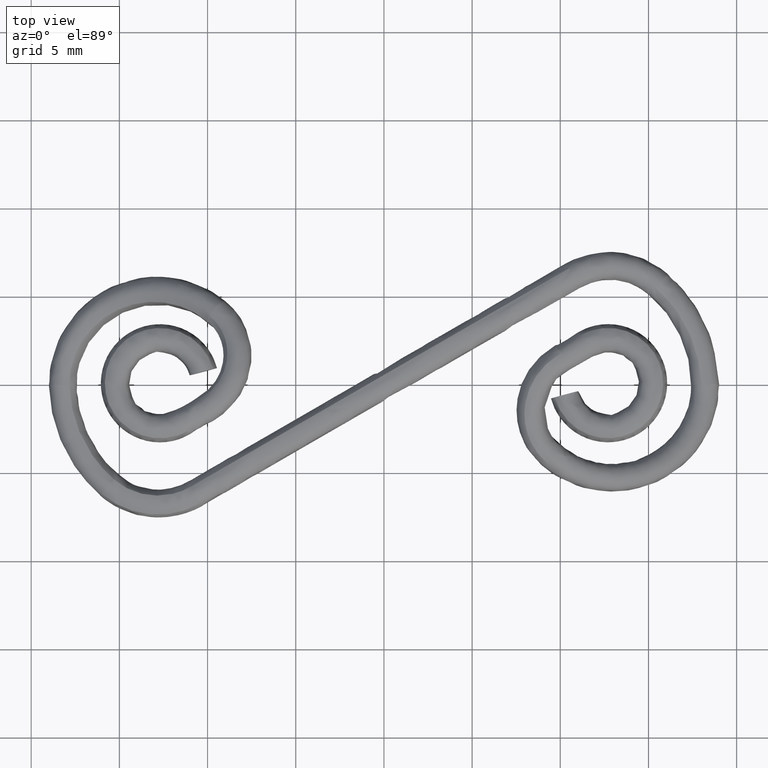
[diagram: clean part render]
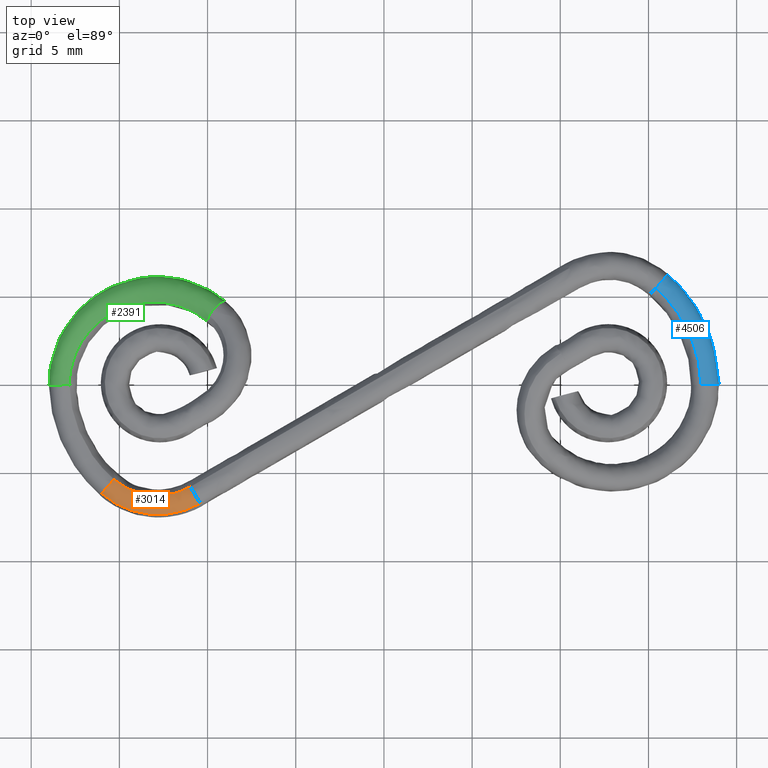
[diagram: same view with three faces highlighted in distinct colors, each labeled with its STEP entity id]
A machine part, top view with three faces highlighted in distinct colors.
Their STEP definitions:

[orange] entity #3014 — the highlighted face is a freeform B-spline surface patch.
#2580=CARTESIAN_POINT('',(-15.304851413509130,-5.374076107252367,-0.145736460972759));
#2581=VERTEX_POINT('',#2580);
#2713=CARTESIAN_POINT('',(-16.001969245800840,-6.177971851380821,-0.405940405065870));
#2714=VERTEX_POINT('',#2713);
#2730=CARTESIAN_POINT('',(-15.598247717231800,-5.687003983437430,-0.044274238070324));
#2731=VERTEX_POINT('',#2730);
#2732=CARTESIAN_POINT('',(-16.001969245800840,-6.177971851380821,-0.405940405065870));
#2733=CARTESIAN_POINT('',(-15.988104356431190,-6.158182375738361,-0.369332884511690));
#2734=CARTESIAN_POINT('',(-15.972127541891780,-6.136325535718172,-0.334971153897003));
#2735=CARTESIAN_POINT('',(-15.932719711504550,-6.084135196347403,-0.264430206837966));
#2736=CARTESIAN_POINT('',(-15.908270984355751,-6.052774553855416,-0.229077952979652));
#2737=CARTESIAN_POINT('',(-15.855642587269690,-5.987018600245817,-0.167441761376291));
#2738=CARTESIAN_POINT('',(-15.827262730472571,-5.952347993510751,-0.140715438794802));
#2739=CARTESIAN_POINT('',(-15.781424106914590,-5.897505295750029,-0.107101065000712));
#2740=CARTESIAN_POINT('',(-15.765661024555421,-5.878828701921150,-0.097051804565765));
#2741=CARTESIAN_POINT('',(-15.733695071005650,-5.841310365006822,-0.079612799623927));
#2742=CARTESIAN_POINT('',(-15.717416570199930,-5.822378648364796,-0.072171829156189));
#2743=CARTESIAN_POINT('',(-15.684266894969211,-5.784169170031620,-0.059853983605091));
#2744=CARTESIAN_POINT('',(-15.667398404673181,-5.764892976233865,-0.054965494010639));
#2745=CARTESIAN_POINT('',(-15.633079768378099,-5.726000970484497,-0.047704961525832));
#2746=CARTESIAN_POINT('',(-15.615614602803980,-5.706370532202555,-0.045349583141520));
#2747=CARTESIAN_POINT('',(-15.598247717231800,-5.687003983437430,-0.044274238070324));
#2748=B_SPLINE_CURVE_WITH_KNOTS('',3,(#2732,#2733,#2734,#2735,#2736,#2737,#2738,#2739,#2740,#2741,#2742,#2743,#2744,#2745,#2746,#2747),.UNSPECIFIED.,.F.,.U.,(4,2,2,2,2,2,2,4),(0.697468194867861,0.749999999999993,0.812499999999995,0.874999999999996,0.906249999999997,0.937499999999998,0.968749999999999,1.0),.UNSPECIFIED.);
#2749=EDGE_CURVE('',#2714,#2731,#2748,.T.);
#2751=CARTESIAN_POINT('',(-15.304851413509130,-5.374076107252367,-0.145736460972759));
#2752=CARTESIAN_POINT('',(-15.331780128793669,-5.401338562407539,-0.124223642854989));
#2753=CARTESIAN_POINT('',(-15.359729692731710,-5.430127692973351,-0.106003481369179));
#2754=CARTESIAN_POINT('',(-15.422995529664570,-5.496317295881082,-0.073318781866199));
#2755=CARTESIAN_POINT('',(-15.457895132178860,-5.533467479352483,-0.060622682646350));
#2756=CARTESIAN_POINT('',(-15.510376801752949,-5.590215262354717,-0.048933325039894));
#2757=CARTESIAN_POINT('',(-15.527932373851581,-5.609344549527609,-0.046254345614026));
#2758=CARTESIAN_POINT('',(-15.563169411565360,-5.648037850500573,-0.043377918635226));
#2759=CARTESIAN_POINT('',(-15.580864167711770,-5.667617607962620,-0.043197922061052));
#2760=CARTESIAN_POINT('',(-15.598247717231800,-5.687003983437430,-0.044274238070324));
#2761=B_SPLINE_CURVE_WITH_KNOTS('',3,(#2751,#2752,#2753,#2754,#2755,#2756,#2757,#2758,#2759,#2760),.UNSPECIFIED.,.F.,.U.,(4,2,2,2,4),(0.822236870192342,0.875000000000000,0.937500000000000,0.968750000000000,1.0),.UNSPECIFIED.);
#2762=EDGE_CURVE('',#2581,#2731,#2761,.T.);
#2891=CARTESIAN_POINT('',(-10.958716871784461,-5.791071054013768,0.252469066762723));
#2892=VERTEX_POINT('',#2891);
#2893=CARTESIAN_POINT('',(-15.304851413509130,-5.374076107252367,-0.145736460972759));
#2894=CARTESIAN_POINT('',(-15.148448587104930,-5.509860566145520,-0.128762460841444));
#2895=CARTESIAN_POINT('',(-14.999993282927100,-5.618375590819358,-0.112886948586587));
#2896=CARTESIAN_POINT('',(-14.670560500604720,-5.824748546919785,-0.078274261617240));
#2897=CARTESIAN_POINT('',(-14.497783483304540,-5.915004468649350,-0.060435419792515));
#2898=CARTESIAN_POINT('',(-13.963265450885780,-6.143828908085800,-0.006407195955681));
#2899=CARTESIAN_POINT('',(-13.585163686359710,-6.240260911519535,0.030272554332131));
#2900=CARTESIAN_POINT('',(-12.433213804979269,-6.351658093904006,0.136491980676933));
#2901=CARTESIAN_POINT('',(-11.644544501153851,-6.187033265300745,0.201362031195077));
#2902=CARTESIAN_POINT('',(-10.958716871784461,-5.791071054013766,0.252469066762722));
#2903=B_SPLINE_CURVE_WITH_KNOTS('',3,(#2893,#2894,#2895,#2896,#2897,#2898,#2899,#2900,#2901,#2902),.UNSPECIFIED.,.F.,.U.,(4,2,2,2,4),(0.001437271162297,0.125000000000000,0.250000000000000,0.500000000000000,1.0),.UNSPECIFIED.);
#2904=EDGE_CURVE('',#2581,#2892,#2903,.T.);
#2921=CARTESIAN_POINT('',(-10.407816419785959,-6.726267885595462,0.105349267746858));
#2922=VERTEX_POINT('',#2921);
#2934=CARTESIAN_POINT('',(-16.001969245800840,-6.177971851380821,-0.405940405065870));
#2935=CARTESIAN_POINT('',(-15.999122891404580,-6.180451633617524,-0.405631363048194));
#2936=CARTESIAN_POINT('',(-15.996248991904171,-6.182955383769921,-0.405319330749782));
#2937=CARTESIAN_POINT('',(-15.813538677536130,-6.342131164379927,-0.385481671957021));
#2938=CARTESIAN_POINT('',(-15.596966986406960,-6.503995023473290,-0.362347963605459));
#2939=CARTESIAN_POINT('',(-15.171423285273820,-6.770488188509802,-0.317846540333942));
#2940=CARTESIAN_POINT('',(-14.949617496778080,-6.886291933823184,-0.295085729030937));
#2941=CARTESIAN_POINT('',(-14.263651176769910,-7.179786879626187,-0.226188802019955));
#2942=CARTESIAN_POINT('',(-13.778726984084800,-7.303337354873862,-0.179456654767780));
#2943=CARTESIAN_POINT('',(-12.301297237673550,-7.446030836631639,-0.043814838213844));
#2944=CARTESIAN_POINT('',(-11.289470119860590,-7.235275655612568,0.039639749827575));
#2945=CARTESIAN_POINT('',(-10.407816419785959,-6.726267885595462,0.105349267746858));
#2946=B_SPLINE_CURVE_WITH_KNOTS('',3,(#2934,#2935,#2936,#2937,#2938,#2939,#2940,#2941,#2942,#2943,#2944,#2945),.UNSPECIFIED.,.F.,.U.,(4,2,2,2,2,4),(-0.002019263299457,0.0,0.125000000000000,0.250000000000000,0.500000000000000,1.0),.UNSPECIFIED.);
#2947=EDGE_CURVE('',#2714,#2922,#2946,.T.);
#2953=CARTESIAN_POINT('',(-15.339808383168050,-5.336657061249444,-0.152889688720000));
#2954=CARTESIAN_POINT('',(-15.466880710986700,-5.468708453311976,-0.047662795349975));
#2955=CARTESIAN_POINT('',(-15.757016660461041,-5.793297244318629,0.006481472940834));
#2956=CARTESIAN_POINT('',(-15.971163201827331,-6.069751184874854,-0.250876606648647));
#2957=CARTESIAN_POINT('',(-16.030387291926949,-6.157593238704576,-0.413850830506048));
#2958=CARTESIAN_POINT('',(-15.328352810525470,-5.346593655570735,-0.151646545314316));
#2959=CARTESIAN_POINT('',(-15.455472303071520,-5.478601868863483,-0.046424821485679));
#2960=CARTESIAN_POINT('',(-15.745723313037750,-5.803085291390478,0.007706835070921));
#2961=CARTESIAN_POINT('',(-15.959966556977029,-6.079450627309855,-0.249661844651971));
#2962=CARTESIAN_POINT('',(-16.019221027392931,-6.167264831952924,-0.412639398836733));
#2963=CARTESIAN_POINT('',(-15.158500296284579,-5.496020585117349,-0.133190256088741));
#2964=CARTESIAN_POINT('',(-15.282467264423140,-5.630842640375508,-0.027624701181205));
#2965=CARTESIAN_POINT('',(-15.565029049116150,-5.962190265393113,0.027345596776567));
#2966=CARTESIAN_POINT('',(-15.772812129113580,-6.244324181741213,-0.229318471349193));
#2967=CARTESIAN_POINT('',(-15.830037667202991,-6.333950539052721,-0.392074723893479));
#2968=CARTESIAN_POINT('',(-14.998590270548901,-5.613009657033852,-0.116102640866272));
#2969=CARTESIAN_POINT('',(-15.110842354922260,-5.756994116242687,-0.009289911753143));
#2970=CARTESIAN_POINT('',(-15.364861441544461,-6.110650991951414,0.048718868262433));
#2971=CARTESIAN_POINT('',(-15.548710078318519,-6.411470647658787,-0.205397572464611));
#2972=CARTESIAN_POINT('',(-15.598431026847511,-6.506949990559229,-0.367355100538489));
#2973=CARTESIAN_POINT('',(-14.337317452427721,-6.027759212792989,-0.046527214936524));
#2974=CARTESIAN_POINT('',(-14.418469691377879,-6.191283517622496,0.063483830955578));
#2975=CARTESIAN_POINT('',(-14.596831146662980,-6.592369041689263,0.129271449897497));
#2976=CARTESIAN_POINT('',(-14.717410093486270,-6.932691718719946,-0.118342552711294));
#2977=CARTESIAN_POINT('',(-14.747339970469641,-7.040484252105570,-0.278266826786440));
#2978=CARTESIAN_POINT('',(-13.775654908308580,-6.216764278108828,0.009401765534455));
#2979=CARTESIAN_POINT('',(-13.830327385874581,-6.389256338307254,0.121956233770669));
#2980=CARTESIAN_POINT('',(-13.944590076723561,-6.811907991976150,0.193897045431718));
#2981=CARTESIAN_POINT('',(-14.012044533770490,-7.169890747885859,-0.048622660167064));
#2982=CARTESIAN_POINT('',(-14.025487325011570,-7.283105282707013,-0.206967417598764));
#2983=CARTESIAN_POINT('',(-12.425779484031329,-6.347263047534807,0.133862050167064));
#2984=CARTESIAN_POINT('',(-12.416616515201120,-6.525976111746985,0.252186166459470));
#2985=CARTESIAN_POINT('',(-12.376622761294570,-6.963543199723790,0.338065742321962));
#2986=CARTESIAN_POINT('',(-12.316634829462730,-7.333671410305586,0.107056697806734));
#2987=CARTESIAN_POINT('',(-12.290637197902390,-7.450595782032999,-0.047727203614362));
#2988=CARTESIAN_POINT('',(-11.630090870803921,-6.178802983587711,0.199232438843596));
#2989=CARTESIAN_POINT('',(-11.583174907195231,-6.349518536810596,0.320694101863630));
#2990=CARTESIAN_POINT('',(-11.452045408693460,-6.767886352605181,0.414150322255192));
#2991=CARTESIAN_POINT('',(-11.316904392680289,-7.122343563100351,0.189393127588136));
#2992=CARTESIAN_POINT('',(-11.267687468901419,-7.234470787599324,0.036541885267476));
#2993=CARTESIAN_POINT('',(-10.940392569547820,-5.774811617928700,0.250506621425367));
#2994=CARTESIAN_POINT('',(-10.860805330462050,-5.926389580488295,0.374396449939190));
#2995=CARTESIAN_POINT('',(-10.650326929402720,-6.298279691521601,0.473750011189891));
#2996=CARTESIAN_POINT('',(-10.449026663141980,-6.613987684433568,0.253909944203799));
#2997=CARTESIAN_POINT('',(-10.379168568927550,-6.714026220470662,0.102592824743018));
#2998=B_SPLINE_SURFACE_WITH_KNOTS('',3,3,((#2953,#2958,#2963,#2968,#2973,#2978,#2983,#2988,#2993),(#2954,#2959,#2964,#2969,#2974,#2979,#2984,#2989,#2994),(#2955,#2960,#2965,#2970,#2975,#2980,#2985,#2990,#2995),(#2956,#2961,#2966,#2971,#2976,#2981,#2986,#2991,#2996),(#2957,#2962,#2967,#2972,#2977,#2982,#2987,#2992,#2997)),.UNSPECIFIED.,.F.,.F.,.U.,(4,1,4),(4,1,2,2,4),(0.0,0.634663126192951,1.219030180329374),(0.0,0.052640842869483,0.829198614885407,3.158871930933180,6.296228052166170),.UNSPECIFIED.);
#2999=ORIENTED_EDGE('',*,*,#2749,.F.);
#3000=ORIENTED_EDGE('',*,*,#2947,.T.);
#3001=CARTESIAN_POINT('',(-10.958716871784461,-5.791071054013768,0.252469066762723));
#3002=CARTESIAN_POINT('',(-10.875859387666910,-5.951065606864349,0.380159867091560));
#3003=CARTESIAN_POINT('',(-10.778869191661981,-6.124946561971095,0.425787460926926));
#3004=CARTESIAN_POINT('',(-10.565717616569760,-6.485127193359685,0.355996493661788));
#3005=CARTESIAN_POINT('',(-10.478927246527251,-6.623189121971716,0.260986938006996));
#3006=CARTESIAN_POINT('',(-10.407816419785959,-6.726267885595462,0.105349267746858));
#3007=B_SPLINE_CURVE_WITH_KNOTS('',3,(#3001,#3002,#3003,#3004,#3005,#3006),.UNSPECIFIED.,.F.,.U.,(4,2,4),(0.0,0.249973722629016,0.480823581870225),.UNSPECIFIED.);
#3008=EDGE_CURVE('',#2892,#2922,#3007,.T.);
#3009=ORIENTED_EDGE('',*,*,#3008,.F.);
#3010=ORIENTED_EDGE('',*,*,#2904,.F.);
#3011=ORIENTED_EDGE('',*,*,#2762,.T.);
#3012=EDGE_LOOP('',(#2999,#3000,#3009,#3010,#3011));
#3013=FACE_OUTER_BOUND('',#3012,.T.);
#3014=ADVANCED_FACE('',(#3013),#2998,.T.);

[blue] entity #4506 — the highlighted face is a freeform B-spline surface patch.
#3651=CARTESIAN_POINT('',(18.576434149344951,0.029800368771868,-1.867520831570873));
#3652=VERTEX_POINT('',#3651);
#3958=CARTESIAN_POINT('',(18.292820325942650,0.015229806762131,-0.361443525144128));
#3959=VERTEX_POINT('',#3958);
#3960=CARTESIAN_POINT('',(18.576434149344951,0.029800368771868,-1.867520831570873));
#3961=CARTESIAN_POINT('',(18.578272936237742,0.029853783438076,-1.866571539931166));
#3962=CARTESIAN_POINT('',(18.580108140760650,0.029907058111987,-1.865614712153130));
#3963=CARTESIAN_POINT('',(18.604984316142861,0.030628706406837,-1.852517117500952));
#3964=CARTESIAN_POINT('',(18.627459021990131,0.031274941332443,-1.839185113029048));
#3965=CARTESIAN_POINT('',(18.671269741932541,0.032522898707384,-1.810125666972656));
#3966=CARTESIAN_POINT('',(18.692596665564249,0.033124273102206,-1.794381023070606));
#3967=CARTESIAN_POINT('',(18.753484898559421,0.034822914032264,-1.744660236192725));
#3968=CARTESIAN_POINT('',(18.790501072990629,0.035830589315194,-1.707911879862982));
#3969=CARTESIAN_POINT('',(18.840764258819231,0.037158568302308,-1.647491218054852));
#3970=CARTESIAN_POINT('',(18.856710841440140,0.037572289118671,-1.626339674615142));
#3971=CARTESIAN_POINT('',(18.886303182548509,0.038323787797284,-1.582847551692972));
#3972=CARTESIAN_POINT('',(18.899949419147550,0.038661695254429,-1.560536923525759));
#3973=CARTESIAN_POINT('',(18.937476566221552,0.039563149931378,-1.491930112628392));
#3974=CARTESIAN_POINT('',(18.957989237106929,0.040015857198130,-1.443980273268321));
#3975=CARTESIAN_POINT('',(18.981388535034679,0.040452387029522,-1.368437313283501));
#3976=CARTESIAN_POINT('',(18.987891480876819,0.040555919287038,-1.342803659793390));
#3977=CARTESIAN_POINT('',(18.998223882215889,0.040679851303259,-1.291491800833349));
#3978=CARTESIAN_POINT('',(19.005961767682809,0.040722155235032,-1.239888536702386));
#3979=CARTESIAN_POINT('',(19.008682709696242,0.040606620373905,-1.187721790465513));
#3980=CARTESIAN_POINT('',(19.008887470605110,0.040411925752501,-1.135272437289859));
#3981=CARTESIAN_POINT('',(19.007712825760692,0.040273894924869,-1.108771816797527));
#3982=CARTESIAN_POINT('',(19.000431277361869,0.039747037054264,-1.030268679792465));
#3983=CARTESIAN_POINT('',(18.990670164531458,0.039247736100782,-0.979025722823986));
#3984=CARTESIAN_POINT('',(18.961289545859561,0.037951682567147,-0.878734740473080));
#3985=CARTESIAN_POINT('',(18.941359041219080,0.037143682581831,-0.829269115437211));
#3986=CARTESIAN_POINT('',(18.892559640710711,0.035275674701208,-0.736934186063389));
#3987=CARTESIAN_POINT('',(18.863679734428310,0.034213491868764,-0.693593222724841));
#3988=CARTESIAN_POINT('',(18.813888323209738,0.032435082793583,-0.632664591771715));
#3989=CARTESIAN_POINT('',(18.796115598257920,0.031808157243092,-0.612968378591480));
#3990=CARTESIAN_POINT('',(18.759122406436720,0.030517739250136,-0.575753274475519));
#3991=CARTESIAN_POINT('',(18.739840386988138,0.029851984335954,-0.558142377709483));
#3992=CARTESIAN_POINT('',(18.679696833780419,0.027794625893980,-0.508225070106278));
#3993=CARTESIAN_POINT('',(18.636568021284699,0.026343717105956,-0.478795699601514));
#3994=CARTESIAN_POINT('',(18.543846464323941,0.023272882647033,-0.428139296830000));
#3995=CARTESIAN_POINT('',(18.495818199217581,0.021704814580997,-0.407781045345756));
#3996=CARTESIAN_POINT('',(18.421372011090622,0.019307182400619,-0.384761112539980));
#3997=CARTESIAN_POINT('',(18.396148932708758,0.018500140258309,-0.378342345472478));
#3998=CARTESIAN_POINT('',(18.344894697691760,0.016870674491884,-0.367991462829650));
#3999=CARTESIAN_POINT('',(18.318738914856681,0.016044894197272,-0.364059748467387));
#4000=CARTESIAN_POINT('',(18.292820325942650,0.015229806762131,-0.361443525144128));
#4001=B_SPLINE_CURVE_WITH_KNOTS('',3,(#3960,#3961,#3962,#3963,#3964,#3965,#3966,#3967,#3968,#3969,#3970,#3971,#3972,#3973,#3974,#3975,#3976,#3977,#3978,#3979,#3980,#3981,#3982,#3983,#3984,#3985,#3986,#3987,#3988,#3989,#3990,#3991,#3992,#3993,#3994,#3995,#3996,#3997,#3998,#3999,#4000),.UNSPECIFIED.,.F.,.U.,(4,2,2,2,2,2,2,2,2,1,2,2,2,2,2,2,2,2,2,2,4),(0.185016197864913,0.187500000000001,0.218750000000001,0.250000000000001,0.312500000000001,0.343750000000001,0.375000000000002,0.437500000000000,0.468750000000000,0.499999999999999,0.531249999999998,0.562499999999998,0.624999999999996,0.687499999999994,0.749999999999993,0.781249999999993,0.812499999999994,0.874999999999994,0.937499999999995,0.968749999999998,1.0),.UNSPECIFIED.);
#4002=EDGE_CURVE('',#3652,#3959,#4001,.T.);
#4004=CARTESIAN_POINT('',(17.982400618973870,0.005913665185289,-0.389997132014686));
#4005=VERTEX_POINT('',#4004);
#4006=CARTESIAN_POINT('',(17.982400618973870,0.005913665185289,-0.389997132014686));
#4007=CARTESIAN_POINT('',(18.032726761031721,0.007373392172456,-0.375292965631856));
#4008=CARTESIAN_POINT('',(18.083806092562291,0.008879453876143,-0.365652773968175));
#4009=CARTESIAN_POINT('',(18.161592275727891,0.011211657763145,-0.358441080634225));
#4010=CARTESIAN_POINT('',(18.187762504344889,0.012002748778414,-0.357261080035584));
#4011=CARTESIAN_POINT('',(18.240481280429201,0.013610100232569,-0.357445159436206));
#4012=CARTESIAN_POINT('',(18.266930259331009,0.014423440757536,-0.358830175086301));
#4013=CARTESIAN_POINT('',(18.292820325942650,0.015229806762131,-0.361443525144128));
#4014=B_SPLINE_CURVE_WITH_KNOTS('',3,(#4006,#4007,#4008,#4009,#4010,#4011,#4012,#4013),.UNSPECIFIED.,.F.,.U.,(4,2,2,4),(0.875211705816904,0.937500000000001,0.968750000000000,1.0),.UNSPECIFIED.);
#4015=EDGE_CURVE('',#4005,#3959,#4014,.T.);
#4235=CARTESIAN_POINT('',(15.410230886767341,5.478490604524286,-0.085778384728988));
#4236=VERTEX_POINT('',#4235);
#4237=CARTESIAN_POINT('',(17.982400618973870,0.005913665185289,-0.389997132014686));
#4238=CARTESIAN_POINT('',(17.950046521596271,0.540157583264013,-0.386349265921107));
#4239=CARTESIAN_POINT('',(17.902902669863408,1.044574955727798,-0.380540425906873));
#4240=CARTESIAN_POINT('',(17.667393574556439,2.050411668068259,-0.350388257954754));
#4241=CARTESIAN_POINT('',(17.494008352537271,2.544317961400374,-0.328231006278225));
#4242=CARTESIAN_POINT('',(17.052091544927741,3.481569909314653,-0.273937800686872));
#4243=CARTESIAN_POINT('',(16.783529498394071,3.929433290714233,-0.241571112205852));
#4244=CARTESIAN_POINT('',(16.163415511141700,4.754578689562030,-0.169165639154542));
#4245=CARTESIAN_POINT('',(15.801444536367701,5.112405688047089,-0.128842887089043));
#4246=CARTESIAN_POINT('',(15.410230886767341,5.478490604524286,-0.085778384728988));
#4247=B_SPLINE_CURVE_WITH_KNOTS('',3,(#4237,#4238,#4239,#4240,#4241,#4242,#4243,#4244,#4245,#4246),.UNSPECIFIED.,.F.,.U.,(4,2,2,2,4),(0.001405179170014,0.250000000000000,0.500000000000000,0.750000000000000,0.999207262519574),.UNSPECIFIED.);
#4248=EDGE_CURVE('',#4005,#4236,#4247,.T.);
#4299=CARTESIAN_POINT('',(15.757282825251700,6.038547678429650,-1.535638772689895));
#4300=VERTEX_POINT('',#4299);
#4314=CARTESIAN_POINT('',(18.576434149344951,0.029800368771868,-1.867520831570873));
#4315=CARTESIAN_POINT('',(18.576178376872441,0.034052694373588,-1.867491708554581));
#4316=CARTESIAN_POINT('',(18.575922332548771,0.038305020548549,-1.867462884834440));
#4317=CARTESIAN_POINT('',(18.543294524366900,0.580180256571160,-1.863789869144960));
#4318=CARTESIAN_POINT('',(18.489834499984330,1.165276866419466,-1.857196526621393));
#4319=CARTESIAN_POINT('',(18.227336828539379,2.283782389938818,-1.823899736856168));
#4320=CARTESIAN_POINT('',(18.035548109395780,2.827795522833048,-1.799654068577892));
#4321=CARTESIAN_POINT('',(17.548795529766519,3.857967919287628,-1.740335062897535));
#4322=CARTESIAN_POINT('',(17.256229429443302,4.345404134885980,-1.705295710822635));
#4323=CARTESIAN_POINT('',(16.569697696750548,5.257629399762410,-1.625538721130073));
#4324=CARTESIAN_POINT('',(16.155354170009879,5.666168617073155,-1.579454785234832));
#4325=CARTESIAN_POINT('',(15.760892912903330,6.035170922460352,-1.536035919747627));
#4326=CARTESIAN_POINT('',(15.759087953044220,6.036859388274834,-1.535837245459860));
#4327=CARTESIAN_POINT('',(15.757282825251700,6.038547678429650,-1.535638772689895));
#4328=B_SPLINE_CURVE_WITH_KNOTS('',3,(#4314,#4315,#4316,#4317,#4318,#4319,#4320,#4321,#4322,#4323,#4324,#4325,#4326,#4327),.UNSPECIFIED.,.F.,.U.,(4,2,2,2,2,2,4),(-0.001977381894598,0.0,0.250000000000000,0.500000000000000,0.750000000000000,1.0,1.001149200553400),.UNSPECIFIED.);
#4329=EDGE_CURVE('',#3652,#4300,#4328,.T.);
#4335=CARTESIAN_POINT('',(18.568937672809689,-0.020454223397198,-1.873281206654440));
#4336=CARTESIAN_POINT('',(18.759647012901670,-0.009613892332926,-1.778471396988354));
#4337=CARTESIAN_POINT('',(19.056331484915962,0.005891717026777,-1.430587553715617));
#4338=CARTESIAN_POINT('',(19.018917310794670,0.000555775087151,-0.975827065544298));
#4339=CARTESIAN_POINT('',(18.827277131271789,-0.013504574696511,-0.603953340188196));
#4340=CARTESIAN_POINT('',(18.520960426657890,-0.033703759035759,-0.345084971125190));
#4341=CARTESIAN_POINT('',(18.130672137041309,-0.057199426131823,-0.345766438822751));
#4342=CARTESIAN_POINT('',(17.975389797527288,-0.066223758194887,-0.393796224116873));
#4343=CARTESIAN_POINT('',(18.567669810148718,0.000384471086360,-1.873138065989145));
#4344=CARTESIAN_POINT('',(18.758378123759201,0.011237206764640,-1.778328128198624));
#4345=CARTESIAN_POINT('',(19.055061159885270,0.026760192996257,-1.430444105674301));
#4346=CARTESIAN_POINT('',(19.017647567453970,0.021417280016068,-0.975683690048987));
#4347=CARTESIAN_POINT('',(18.826008794740481,0.007339987190679,-0.603810140230292));
#4348=CARTESIAN_POINT('',(18.519694069187778,-0.012883062536217,-0.344942018139698));
#4349=CARTESIAN_POINT('',(18.129408035614979,-0.036405969135154,-0.345623767409972));
#4350=CARTESIAN_POINT('',(17.974126555332919,-0.045440681067450,-0.393653659948906));
#4351=CARTESIAN_POINT('',(18.534872852409851,0.556980416841818,-1.869468626981273));
#4352=CARTESIAN_POINT('',(18.725637409213519,0.567153133526397,-1.774665708484091));
#4353=CARTESIAN_POINT('',(19.022399121142708,0.581723519814373,-1.426791506285846));
#4354=CARTESIAN_POINT('',(18.984953657354129,0.576762752155865,-0.972027116307954));
#4355=CARTESIAN_POINT('',(18.793237803161091,0.563614268270979,-0.600143949754461));
#4356=CARTESIAN_POINT('',(18.486814641097901,0.544699510114793,-0.341262297355875));
#4357=CARTESIAN_POINT('',(18.096404994193360,0.522669866327741,-0.341928620705299));
#4358=CARTESIAN_POINT('',(17.941076434736559,0.514204176826826,-0.389952637845072));
#4359=CARTESIAN_POINT('',(18.479426291925460,1.163729038710781,-1.862630406767570));
#4360=CARTESIAN_POINT('',(18.668700527348690,1.191953479190078,-1.767641580936167));
#4361=CARTESIAN_POINT('',(18.963377474018941,1.231811742402052,-1.419507282437552));
#4362=CARTESIAN_POINT('',(18.926776463076560,1.216707154064288,-0.964848146663588));
#4363=CARTESIAN_POINT('',(18.737103031871730,1.178903158088691,-0.593219673966486));
#4364=CARTESIAN_POINT('',(18.433553140460809,1.125259107625136,-0.334696368061562));
#4365=CARTESIAN_POINT('',(18.046418948104499,1.063589676788814,-0.335771246907577));
#4366=CARTESIAN_POINT('',(17.892337879420200,1.040018803810612,-0.383950874667966));
#4367=CARTESIAN_POINT('',(18.217250729399041,2.280851488244048,-1.829370963490271));
#4368=CARTESIAN_POINT('',(18.400649424923969,2.334296659993883,-1.733700879884142));
#4369=CARTESIAN_POINT('',(18.687097752798650,2.409834180739913,-1.384613335995913));
#4370=CARTESIAN_POINT('',(18.653803515520352,2.381380818662675,-0.930339616244819));
#4371=CARTESIAN_POINT('',(18.472160108123848,2.309942416374388,-0.559644185240462));
#4372=CARTESIAN_POINT('',(18.179918484268711,2.208492091176749,-0.302433790407503));
#4373=CARTESIAN_POINT('',(17.805688486121941,2.091776825330142,-0.305005703915738));
#4374=CARTESIAN_POINT('',(17.656524222694980,2.047152686423622,-0.353755549327652));
#4375=CARTESIAN_POINT('',(18.025691059853369,2.824213436107241,-1.805151271132745));
#4376=CARTESIAN_POINT('',(18.204912666426939,2.889529264781962,-1.709007471679712));
#4377=CARTESIAN_POINT('',(18.485475797920952,2.982039639647970,-1.359252656494855));
#4378=CARTESIAN_POINT('',(18.454449204523289,2.947727834512695,-0.905236478793170));
#4379=CARTESIAN_POINT('',(18.278432427033170,2.860877566101608,-0.535179521268490));
#4380=CARTESIAN_POINT('',(17.994157876224339,2.737294885945006,-0.278872981097975));
#4381=CARTESIAN_POINT('',(17.629067839625488,2.594844525959218,-0.282481592824065));
#4382=CARTESIAN_POINT('',(17.483393944478060,2.540337386430662,-0.331627297346401));
#4383=CARTESIAN_POINT('',(17.539515531860399,3.853155614872992,-1.745897020474204));
#4384=CARTESIAN_POINT('',(17.708216952335800,3.940893731278209,-1.648572688485023));
#4385=CARTESIAN_POINT('',(17.973786713221671,4.065658980049794,-1.297134776740440));
#4386=CARTESIAN_POINT('',(17.948066780357241,4.020742196353282,-0.843712670214406));
#4387=CARTESIAN_POINT('',(17.785821730942612,3.905235595105254,-0.475199717997735));
#4388=CARTESIAN_POINT('',(17.521261268708681,3.740247836597234,-0.221104178739309));
#4389=CARTESIAN_POINT('',(17.179025413742579,3.549375155876108,-0.227276813567634));
#4390=CARTESIAN_POINT('',(17.042117243038280,3.476228582023415,-0.277406084527293));
#4391=CARTESIAN_POINT('',(17.247256698463740,4.340069022813196,-1.710891911371130));
#4392=CARTESIAN_POINT('',(17.410356079023529,4.437336157037694,-1.612943272218458));
#4393=CARTESIAN_POINT('',(17.667956380539731,4.575799628350866,-1.260616957805238));
#4394=CARTESIAN_POINT('',(17.645096679155891,4.526353632415925,-0.807512980906831));
#4395=CARTESIAN_POINT('',(17.490219090737511,4.398646652144312,-0.439820464889672));
#4396=CARTESIAN_POINT('',(17.236186348608459,4.216043195412254,-0.186897623694591));
#4397=CARTESIAN_POINT('',(16.906134490751480,4.004582896615387,-0.194427823272487));
#4398=CARTESIAN_POINT('',(16.773896222871500,3.923513566181412,-0.245077483035979));
#4399=CARTESIAN_POINT('',(16.561605286976860,5.251119060625338,-1.631232493664766));
#4400=CARTESIAN_POINT('',(16.708661742780329,5.369800194922586,-1.531505737006417));
#4401=CARTESIAN_POINT('',(16.943065199648821,5.539404232999129,-1.176606640343724));
#4402=CARTESIAN_POINT('',(16.927512620849591,5.480624160177747,-0.724308390724959));
#4403=CARTESIAN_POINT('',(16.792861404416840,5.326333059811656,-0.358853561531100));
#4404=CARTESIAN_POINT('',(16.568209832182990,5.104876098679728,-0.109183570966207));
#4405=CARTESIAN_POINT('',(16.272689037926138,4.847495260459876,-0.120539322637366));
#4406=CARTESIAN_POINT('',(16.153769808406580,4.748673601644359,-0.172664941781780));
#4407=CARTESIAN_POINT('',(16.134364481878190,5.672378704820369,-1.583713339588733));
#4408=CARTESIAN_POINT('',(16.268007282704360,5.804208482535376,-1.482508757257377));
#4409=CARTESIAN_POINT('',(16.482792118417532,5.993078425459775,-1.125447617286977));
#4410=CARTESIAN_POINT('',(16.472821147349460,5.928909427405550,-0.673762902404326));
#4411=CARTESIAN_POINT('',(16.354560387506829,5.758633019882296,-0.310112472216680));
#4412=CARTESIAN_POINT('',(16.154016145434952,5.513616590992216,-0.063097240205001));
#4413=CARTESIAN_POINT('',(15.887151483672900,5.228179435116950,-0.077609554985761));
#4414=CARTESIAN_POINT('',(15.779335907974010,5.118478573516511,-0.130958412697170));
#4415=CARTESIAN_POINT('',(15.729488854568549,6.050424755948443,-1.539164071719139));
#4416=CARTESIAN_POINT('',(15.863562389854510,6.181832168122749,-1.438006945115109));
#4417=CARTESIAN_POINT('',(16.078977216096352,6.370083232641989,-1.081015232997554));
#4418=CARTESIAN_POINT('',(16.068827020918761,6.306087311386309,-0.629310817857328));
#4419=CARTESIAN_POINT('',(15.950039946964280,6.136324361893905,-0.265602446529090));
#4420=CARTESIAN_POINT('',(15.748721588074870,5.892064694336043,-0.018501966577491));
#4421=CARTESIAN_POINT('',(15.480936735179650,5.607528762242992,-0.032912918860078));
#4422=CARTESIAN_POINT('',(15.372764603591570,5.498177364640467,-0.086222496200578));
#4423=CARTESIAN_POINT('',(15.716557862433859,6.062532113050170,-1.537740491051850));
#4424=CARTESIAN_POINT('',(15.850624644021741,6.193946147528572,-1.436582620366462));
#4425=CARTESIAN_POINT('',(16.066029592336811,6.382206915478630,-1.079589819656701));
#4426=CARTESIAN_POINT('',(16.055882207315449,6.318208280502976,-0.627885713408201));
#4427=CARTESIAN_POINT('',(15.937103385712380,6.148437280425664,-0.264178250569012));
#4428=CARTESIAN_POINT('',(15.735797164593700,5.904165747514497,-0.017079107262801));
#4429=CARTESIAN_POINT('',(15.468026739834510,5.619615685045422,-0.031491648857905));
#4430=CARTESIAN_POINT('',(15.359860198862901,5.510258808165963,-0.084801842094503));
#4431=B_SPLINE_SURFACE_WITH_KNOTS('',3,3,((#4335,#4343,#4351,#4359,#4367,#4375,#4383,#4391,#4399,#4407,#4415,#4423),(#4336,#4344,#4352,#4360,#4368,#4376,#4384,#4392,#4400,#4408,#4416,#4424),(#4337,#4345,#4353,#4361,#4369,#4377,#4385,#4393,#4401,#4409,#4417,#4425),(#4338,#4346,#4354,#4362,#4370,#4378,#4386,#4394,#4402,#4410,#4418,#4426),(#4339,#4347,#4355,#4363,#4371,#4379,#4387,#4395,#4403,#4411,#4419,#4427),(#4340,#4348,#4356,#4364,#4372,#4380,#4388,#4396,#4404,#4412,#4420,#4428),(#4341,#4349,#4357,#4365,#4373,#4381,#4389,#4397,#4405,#4413,#4421,#4429),(#4342,#4350,#4358,#4366,#4374,#4382,#4390,#4398,#4406,#4414,#4422,#4430)),.UNSPECIFIED.,.F.,.F.,.U.,(4,1,2,1,4),(4,1,2,2,2,1,4),(0.0,0.640724902399797,1.269617442014449,1.898509981629101,2.388297646680776),(0.0,0.069740843370708,1.871833522632728,3.673926201894748,5.476018881156768,7.278111560418790,7.337409435322325),.UNSPECIFIED.);
#4432=ORIENTED_EDGE('',*,*,#4015,.T.);
#4433=ORIENTED_EDGE('',*,*,#4002,.F.);
#4434=ORIENTED_EDGE('',*,*,#4329,.T.);
#4435=CARTESIAN_POINT('',(16.019131944902501,6.279055442660342,-1.126548424494869));
#4436=VERTEX_POINT('',#4435);
#4437=CARTESIAN_POINT('',(15.757282825251700,6.038547678429650,-1.535638772689895));
#4438=CARTESIAN_POINT('',(15.762255708099721,6.043575286749009,-1.531669230602861));
#4439=CARTESIAN_POINT('',(15.767193814246159,6.048550805681195,-1.527587614219830));
#4440=CARTESIAN_POINT('',(15.787833971400770,6.069275438824598,-1.509933516919893));
#4441=CARTESIAN_POINT('',(15.803213771306410,6.084541878148784,-1.495322523569198));
#4442=CARTESIAN_POINT('',(15.833259110240020,6.114004921392159,-1.463798702669285));
#4443=CARTESIAN_POINT('',(15.847914391538900,6.128188803982211,-1.446874647159373));
#4444=CARTESIAN_POINT('',(15.889863508433960,6.168230028956335,-1.393817875543664));
#4445=CARTESIAN_POINT('',(15.915510166447520,6.191948304544505,-1.355086897889377));
#4446=CARTESIAN_POINT('',(15.950550391542800,6.223125251413916,-1.292022251415092));
#4447=CARTESIAN_POINT('',(15.961708226753739,6.232822756383235,-1.270039666291672));
#4448=CARTESIAN_POINT('',(15.982488139559999,6.250391839276494,-1.225043278788936));
#4449=CARTESIAN_POINT('',(15.992114573545919,6.258270722289835,-1.202049958255584));
#4450=CARTESIAN_POINT('',(16.007435081151360,6.270329488914208,-1.161487168130208));
#4451=CARTESIAN_POINT('',(16.013488372321142,6.274935461175034,-1.144150642826835));
#4452=CARTESIAN_POINT('',(16.019131944902501,6.279055442660342,-1.126548424494869));
#4453=B_SPLINE_CURVE_WITH_KNOTS('',3,(#4437,#4438,#4439,#4440,#4441,#4442,#4443,#4444,#4445,#4446,#4447,#4448,#4449,#4450,#4451,#4452),.UNSPECIFIED.,.F.,.U.,(4,2,2,2,2,2,2,4),(0.177763196113843,0.187500000000013,0.218750000000014,0.250000000000014,0.312500000000014,0.343750000000014,0.375000000000014,0.397726754530586),.UNSPECIFIED.);
#4454=EDGE_CURVE('',#4300,#4436,#4453,.T.);
#4455=ORIENTED_EDGE('',*,*,#4454,.T.);
#4456=CARTESIAN_POINT('',(15.607804960034001,5.692505060938380,-0.044986752160377));
#4457=VERTEX_POINT('',#4456);
#4458=CARTESIAN_POINT('',(16.019131944902501,6.279055442660342,-1.126548424494869));
#4459=CARTESIAN_POINT('',(16.029008730019559,6.286265830578709,-1.095743528130873));
#4460=CARTESIAN_POINT('',(16.037630661842869,6.291987766044572,-1.064124888840981));
#4461=CARTESIAN_POINT('',(16.050667831813730,6.299407250140739,-1.006133569406256));
#4462=CARTESIAN_POINT('',(16.055546474216630,6.301677453687543,-0.980251243993736));
#4463=CARTESIAN_POINT('',(16.063519060407419,6.304253898488869,-0.928592714572309));
#4464=CARTESIAN_POINT('',(16.069763463677202,6.304899363411297,-0.876795682416952));
#4465=CARTESIAN_POINT('',(16.072659056923559,6.301803045826357,-0.824730264698823));
#4466=CARTESIAN_POINT('',(16.073871170006630,6.296825696776629,-0.772529926886049));
#4467=CARTESIAN_POINT('',(16.073625300049819,6.293369567528315,-0.746232984653639));
#4468=CARTESIAN_POINT('',(16.070341596442631,6.280331344878885,-0.668583834306698));
#4469=CARTESIAN_POINT('',(16.064830742040581,6.268125827945035,-0.618188117686095));
#4470=CARTESIAN_POINT('',(16.047102856492870,6.236621693702781,-0.520163336077409));
#4471=CARTESIAN_POINT('',(16.034675157615059,6.217042127244151,-0.472141082625443));
#4472=CARTESIAN_POINT('',(16.003661449671071,6.171921761623944,-0.383199787312943));
#4473=CARTESIAN_POINT('',(15.985104867790110,6.146353189996550,-0.341782125341139));
#4474=CARTESIAN_POINT('',(15.952850596756960,6.103640833963946,-0.284079754631304));
#4475=CARTESIAN_POINT('',(15.941301057128110,6.088601694371874,-0.265525750868740));
#4476=CARTESIAN_POINT('',(15.917187951516301,6.057672503777956,-0.230666617582002));
#4477=CARTESIAN_POINT('',(15.904583013794030,6.041725695813486,-0.214271195663192));
#4478=CARTESIAN_POINT('',(15.865159627399640,5.992470799653841,-0.168118380390041));
#4479=CARTESIAN_POINT('',(15.836753285125100,5.957766220492867,-0.141353761459211));
#4480=CARTESIAN_POINT('',(15.775393238923320,5.884359217438863,-0.096406672702975));
#4481=CARTESIAN_POINT('',(15.743497803806010,5.846925669858287,-0.079022824683903));
#4482=CARTESIAN_POINT('',(15.693834176926030,5.789681858393078,-0.060570551695026));
#4483=CARTESIAN_POINT('',(15.676977793416340,5.770419284421328,-0.055683794540757));
#4484=CARTESIAN_POINT('',(15.642665223519700,5.731533852169723,-0.048422056896230));
#4485=CARTESIAN_POINT('',(15.625189129755389,5.711890878619198,-0.046063122211531));
#4486=CARTESIAN_POINT('',(15.607804960034001,5.692505060938380,-0.044986752160377));
#4487=B_SPLINE_CURVE_WITH_KNOTS('',3,(#4458,#4459,#4460,#4461,#4462,#4463,#4464,#4465,#4466,#4467,#4468,#4469,#4470,#4471,#4472,#4473,#4474,#4475,#4476,#4477,#4478,#4479,#4480,#4481,#4482,#4483,#4484,#4485,#4486),.UNSPECIFIED.,.F.,.U.,(4,2,2,1,2,2,2,2,2,2,2,2,2,2,4),(0.397726754530586,0.437500000000013,0.468750000000012,0.500000000000012,0.531250000000011,0.562500000000011,0.625000000000009,0.687500000000008,0.750000000000007,0.781250000000007,0.812500000000007,0.875000000000004,0.937500000000002,0.968750000000001,1.0),.UNSPECIFIED.);
#4488=EDGE_CURVE('',#4436,#4457,#4487,.T.);
#4489=ORIENTED_EDGE('',*,*,#4488,.T.);
#4490=CARTESIAN_POINT('',(15.410230886767341,5.478490604524286,-0.085778384728988));
#4491=CARTESIAN_POINT('',(15.440547148600221,5.510337009038181,-0.071196292094154));
#4492=CARTESIAN_POINT('',(15.471183138389240,5.543005800077038,-0.060531267521887));
#4493=CARTESIAN_POINT('',(15.519652899933741,5.595410641448321,-0.049694217021701));
#4494=CARTESIAN_POINT('',(15.537279380469840,5.614615375619827,-0.046989138036514));
#4495=CARTESIAN_POINT('',(15.563873013745130,5.643816612408000,-0.044811025751037));
#4496=CARTESIAN_POINT('',(15.572750155102060,5.653601914371763,-0.044401008222086));
#4497=CARTESIAN_POINT('',(15.590453266070410,5.673192102664353,-0.044222093021115));
#4498=CARTESIAN_POINT('',(15.599121814110029,5.682821500957284,-0.044449171299018));
#4499=CARTESIAN_POINT('',(15.607804960034001,5.692505060938380,-0.044986752160377));
#4500=B_SPLINE_CURVE_WITH_KNOTS('',3,(#4490,#4491,#4492,#4493,#4494,#4495,#4496,#4497,#4498,#4499),.UNSPECIFIED.,.F.,.U.,(4,2,2,2,4),(0.882331041148833,0.937500000000001,0.968750000000000,0.984375000000000,1.0),.UNSPECIFIED.);
#4501=EDGE_CURVE('',#4236,#4457,#4500,.T.);
#4502=ORIENTED_EDGE('',*,*,#4501,.F.);
#4503=ORIENTED_EDGE('',*,*,#4248,.F.);
#4504=EDGE_LOOP('',(#4432,#4433,#4434,#4455,#4489,#4502,#4503));
#4505=FACE_OUTER_BOUND('',#4504,.T.);
#4506=ADVANCED_FACE('',(#4505),#4431,.F.);

[green] entity #2391 — the highlighted face is a freeform B-spline surface patch.
#1568=CARTESIAN_POINT('',(-9.059387980335979,4.674913595426780,3.222986224316580));
#1569=VERTEX_POINT('',#1568);
#1570=CARTESIAN_POINT('',(-9.906934944882353,3.846819592701188,3.602153643109173));
#1571=VERTEX_POINT('',#1570);
#1572=CARTESIAN_POINT('',(-9.059387980335979,4.674913595426780,3.222986224316580));
#1573=CARTESIAN_POINT('',(-9.065183282482620,4.673888185966382,3.234617465727733));
#1574=CARTESIAN_POINT('',(-9.071142972305054,4.672604158926495,3.246131191696617));
#1575=CARTESIAN_POINT('',(-9.083395564711314,4.669511888676754,3.268920440588862));
#1576=CARTESIAN_POINT('',(-9.089769467455598,4.667679845597061,3.280340638156275));
#1577=CARTESIAN_POINT('',(-9.109302196982625,4.661411882999782,3.314063721358772));
#1578=CARTESIAN_POINT('',(-9.122862293932153,4.656219846971094,3.335836356151705));
#1579=CARTESIAN_POINT('',(-9.165075924332811,4.637757109762222,3.399133444190325));
#1580=CARTESIAN_POINT('',(-9.195244471705141,4.621634254744397,3.438661224839906));
#1581=CARTESIAN_POINT('',(-9.259661361087991,4.581707982276888,3.512339937845111));
#1582=CARTESIAN_POINT('',(-9.292894922052083,4.558533834774229,3.545330771560706));
#1583=CARTESIAN_POINT('',(-9.344222158582348,4.519115449117160,3.589211962745945));
#1584=CARTESIAN_POINT('',(-9.361580428698153,4.505191989825997,3.602896793003176));
#1585=CARTESIAN_POINT('',(-9.396815939361119,4.475712299307153,3.628304136826937));
#1586=CARTESIAN_POINT('',(-9.414769963161422,4.460081109862506,3.640061123322267));
#1587=CARTESIAN_POINT('',(-9.468250651528141,4.411680360600865,3.671496923408530));
#1588=CARTESIAN_POINT('',(-9.503719496494224,4.377131204908872,3.687570593899735));
#1589=CARTESIAN_POINT('',(-9.574305147895171,4.303689728905847,3.710423520353042));
#1590=CARTESIAN_POINT('',(-9.609696191677100,4.264452405296336,3.717175194189825));
#1591=CARTESIAN_POINT('',(-9.677303243461177,4.184806912187229,3.720928220962671));
#1592=CARTESIAN_POINT('',(-9.709836493855963,4.144104395197359,3.718101938969836));
#1593=CARTESIAN_POINT('',(-9.756677999981461,4.081694290943682,3.706612165252845));
#1594=CARTESIAN_POINT('',(-9.771967152979221,4.060646060759572,3.701541213032354));
#1595=CARTESIAN_POINT('',(-9.801200772012821,4.019007490280943,3.689129098518137));
#1596=CARTESIAN_POINT('',(-9.815233710461694,3.998301941417699,3.681771438313016));
#1597=CARTESIAN_POINT('',(-9.855566889929124,3.936529241610026,3.656215976878212));
#1598=CARTESIAN_POINT('',(-9.880178141173618,3.895629694477079,3.634372210036795));
#1599=CARTESIAN_POINT('',(-9.903766939408527,3.852653795353676,3.606075750689835));
#1600=CARTESIAN_POINT('',(-9.905359403993641,3.849731766748398,3.604125016984886));
#1601=CARTESIAN_POINT('',(-9.906934944882353,3.846819592701188,3.602153643109173));
#1602=B_SPLINE_CURVE_WITH_KNOTS('',3,(#1572,#1573,#1574,#1575,#1576,#1577,#1578,#1579,#1580,#1581,#1582,#1583,#1584,#1585,#1586,#1587,#1588,#1589,#1590,#1591,#1592,#1593,#1594,#1595,#1596,#1597,#1598,#1599,#1600,#1601),.UNSPECIFIED.,.F.,.U.,(4,2,2,2,2,2,2,2,2,2,2,2,2,2,4),(0.0,0.015625000000000,0.031250000000001,0.062500000000001,0.125000000000001,0.187500000000001,0.218750000000001,0.250000000000001,0.312500000000001,0.375000000000000,0.437499999999999,0.468749999999998,0.499999999999998,0.562499999999997,0.567075899729916),.UNSPECIFIED.);
#1603=EDGE_CURVE('',#1569,#1571,#1602,.T.);
#1634=CARTESIAN_POINT('',(-10.017231713933541,3.528219933815038,3.240482905691120));
#1635=VERTEX_POINT('',#1634);
#1681=CARTESIAN_POINT('',(-9.105669165661146,4.120279536177234,2.252424275140079));
#1682=VERTEX_POINT('',#1681);
#1712=CARTESIAN_POINT('',(-9.059387980335979,4.674913595426780,3.222986224316580));
#1713=CARTESIAN_POINT('',(-9.047786185791713,4.676952873603677,3.199733979770065));
#1714=CARTESIAN_POINT('',(-9.036831945129769,4.677963609669485,3.175998164333513));
#1715=CARTESIAN_POINT('',(-9.016171609539558,4.677906778994093,3.127429031802963));
#1716=CARTESIAN_POINT('',(-9.006546698256035,4.676827883562882,3.102761668902219));
#1717=CARTESIAN_POINT('',(-8.980151860281106,4.670588415638764,3.028749414436772));
#1718=CARTESIAN_POINT('',(-8.965765475346473,4.662495193120305,2.979304537363669));
#1719=CARTESIAN_POINT('',(-8.943230521753520,4.638677702303965,2.880211523659071));
#1720=CARTESIAN_POINT('',(-8.935073328548429,4.622693653441735,2.830038255221175));
#1721=CARTESIAN_POINT('',(-8.926013038102859,4.583981341065990,2.733566383309887));
#1722=CARTESIAN_POINT('',(-8.924990307109590,4.561233615092251,2.686946651385983));
#1723=CARTESIAN_POINT('',(-8.930189083236057,4.508731881117438,2.597045953836233));
#1724=CARTESIAN_POINT('',(-8.936491736226058,4.478708690248522,2.553432766664192));
#1725=CARTESIAN_POINT('',(-8.955593378243352,4.414463280318207,2.473240216419742));
#1726=CARTESIAN_POINT('',(-8.968363705812418,4.380027849211582,2.436179319257520));
#1727=CARTESIAN_POINT('',(-8.992394298883349,4.324874598709528,2.385182566111028));
#1728=CARTESIAN_POINT('',(-9.001244259042798,4.305875873800090,2.368953010441687));
#1729=CARTESIAN_POINT('',(-9.020231293597680,4.267493792686726,2.338755227817500));
#1730=CARTESIAN_POINT('',(-9.040585685507729,4.228532292076908,2.310627848151530));
#1731=CARTESIAN_POINT('',(-9.063681978579295,4.188408606072104,2.286652621836221));
#1732=CARTESIAN_POINT('',(-9.085413238686305,4.152314354688435,2.267317635626105));
#1733=CARTESIAN_POINT('',(-9.095352356643712,4.136342260430502,2.259516565846699));
#1734=CARTESIAN_POINT('',(-9.105669165661146,4.120279536177234,2.252424275140079));
#1735=B_SPLINE_CURVE_WITH_KNOTS('',3,(#1712,#1713,#1714,#1715,#1716,#1717,#1718,#1719,#1720,#1721,#1722,#1723,#1724,#1725,#1726,#1727,#1728,#1729,#1730,#1731,#1732,#1733,#1734),.UNSPECIFIED.,.F.,.U.,(4,2,2,2,2,2,2,2,2,1,2,4),(0.0,0.031250000000001,0.062500000000002,0.125000000000003,0.187500000000004,0.250000000000005,0.312500000000007,0.375000000000008,0.406250000000008,0.437500000000009,0.468750000000010,0.492889295149358),.UNSPECIFIED.);
#1736=EDGE_CURVE('',#1569,#1682,#1735,.T.);
#1806=CARTESIAN_POINT('',(-9.906934944882353,3.846819592701188,3.602153643109173));
#1807=CARTESIAN_POINT('',(-9.926882299008568,3.809953980968513,3.577203875419784));
#1808=CARTESIAN_POINT('',(-9.944156483990117,3.774647841441799,3.549006627952385));
#1809=CARTESIAN_POINT('',(-9.966866838573621,3.722559496118554,3.500879441212866));
#1810=CARTESIAN_POINT('',(-9.974084032314265,3.704738266473262,3.483113178485701));
#1811=CARTESIAN_POINT('',(-9.986997209921135,3.669983263230589,3.445732606990381));
#1812=CARTESIAN_POINT('',(-9.992665811581512,3.653103258354661,3.426158712274746));
#1813=CARTESIAN_POINT('',(-10.007014049386440,3.604870917975603,3.365879713975574));
#1814=CARTESIAN_POINT('',(-10.013206929526421,3.575537658185815,3.323261504884092));
#1815=CARTESIAN_POINT('',(-10.016592164096931,3.541960267757074,3.265765273275421));
#1816=CARTESIAN_POINT('',(-10.017048755780239,3.534964011212652,3.253200095811043));
#1817=CARTESIAN_POINT('',(-10.017231713933541,3.528219933815038,3.240482905691120));
#1818=B_SPLINE_CURVE_WITH_KNOTS('',3,(#1806,#1807,#1808,#1809,#1810,#1811,#1812,#1813,#1814,#1815,#1816,#1817),.UNSPECIFIED.,.F.,.U.,(4,2,2,2,2,4),(0.567075899729916,0.624999999999996,0.656249999999996,0.687499999999996,0.749999999999997,0.767061458564381),.UNSPECIFIED.);
#1819=EDGE_CURVE('',#1571,#1635,#1818,.T.);
#2004=CARTESIAN_POINT('',(-17.932954222185039,-0.004765133382997,-1.910022682030774));
#2005=VERTEX_POINT('',#2004);
#2006=CARTESIAN_POINT('',(-17.833085694830402,0.003582177200883,-0.445030937167454));
#2007=VERTEX_POINT('',#2006);
#2047=CARTESIAN_POINT('',(-9.105669165661146,4.120279536177234,2.252424275140079));
#2048=CARTESIAN_POINT('',(-9.293847473414404,4.278482695171467,2.163690090428476));
#2049=CARTESIAN_POINT('',(-9.495286821597702,4.425543435602357,2.068702750562774));
#2050=CARTESIAN_POINT('',(-9.920196108897615,4.692587706675319,1.868339691524844));
#2051=CARTESIAN_POINT('',(-10.145470390406579,4.812726954373710,1.762113146951022));
#2052=CARTESIAN_POINT('',(-10.843215554568310,5.123332760895022,1.433096185572084));
#2053=CARTESIAN_POINT('',(-11.337472508775420,5.263611909056980,1.200032687918619));
#2054=CARTESIAN_POINT('',(-12.850371970820071,5.468114050718316,0.486635230102883));
#2055=CARTESIAN_POINT('',(-13.896818977927429,5.309870678510384,-0.006809782037347));
#2056=CARTESIAN_POINT('',(-15.744101229656181,4.452202027001945,-0.877883315077742));
#2057=CARTESIAN_POINT('',(-16.541866255339279,3.754065275621467,-1.254064094890051));
#2058=CARTESIAN_POINT('',(-17.364229059484671,2.462827499836412,-1.641843867292024));
#2059=CARTESIAN_POINT('',(-17.576703270556731,1.993300644590887,-1.742034701912776));
#2060=CARTESIAN_POINT('',(-17.790421428120009,1.257423226963295,-1.842812145611362));
#2061=CARTESIAN_POINT('',(-17.844203474295909,1.006975551241712,-1.868172737343383));
#2062=CARTESIAN_POINT('',(-17.915446137500101,0.502793349224358,-1.901766797566680));
#2063=CARTESIAN_POINT('',(-17.933163034002838,0.247047250862800,-1.910121113167799));
#2064=CARTESIAN_POINT('',(-17.932954222185039,-0.004765133382997,-1.910022682030774));
#2065=B_SPLINE_CURVE_WITH_KNOTS('',3,(#2047,#2048,#2049,#2050,#2051,#2052,#2053,#2054,#2055,#2056,#2057,#2058,#2059,#2060,#2061,#2062,#2063,#2064),.UNSPECIFIED.,.F.,.U.,(4,2,2,2,2,2,2,2,4),(0.001862412457592,0.062500000000000,0.125000000000000,0.250000000000000,0.500000000000000,0.750000000000000,0.875000000000000,0.937500000000000,0.999540144974742),.UNSPECIFIED.);
#2066=EDGE_CURVE('',#1682,#2005,#2065,.T.);
#2070=CARTESIAN_POINT('',(-10.017231713933541,3.528219933815038,3.240482905691120));
#2071=CARTESIAN_POINT('',(-10.021216426477020,3.531599160221936,3.238603941795331));
#2072=CARTESIAN_POINT('',(-10.025156285896440,3.534940305218360,3.236746128082841));
#2073=CARTESIAN_POINT('',(-10.210235794643991,3.691892073777775,3.149473153935875));
#2074=CARTESIAN_POINT('',(-10.380928861501619,3.815762954343976,3.068984004893181));
#2075=CARTESIAN_POINT('',(-10.761399822594090,4.054879146602216,2.889575518292942));
#2076=CARTESIAN_POINT('',(-10.960577581143109,4.161140467696742,2.795654602084416));
#2077=CARTESIAN_POINT('',(-11.578717702633501,4.436309876996736,2.504174827755612));
#2078=CARTESIAN_POINT('',(-12.018204238751620,4.561213252608146,2.296937927614071));
#2079=CARTESIAN_POINT('',(-13.365333600284490,4.743308318902885,1.661708170463193));
#2080=CARTESIAN_POINT('',(-14.299071267110911,4.601410656452392,1.221410438109776));
#2081=CARTESIAN_POINT('',(-15.934898209379300,3.841918267907880,0.450047145067814));
#2082=CARTESIAN_POINT('',(-16.633340129121340,3.227102402159374,0.120701470803146));
#2083=CARTESIAN_POINT('',(-17.345621903950409,2.108709491369155,-0.215170366090924));
#2084=CARTESIAN_POINT('',(-17.528185733237191,1.704478435116342,-0.301257168891688));
#2085=CARTESIAN_POINT('',(-17.711328246547492,1.073880152869170,-0.387616878665931));
#2086=CARTESIAN_POINT('',(-17.757296411184381,0.859702110274309,-0.409292887973667));
#2087=CARTESIAN_POINT('',(-17.817837552048442,0.431255238814000,-0.437840716820893));
#2088=CARTESIAN_POINT('',(-17.832980492686950,0.233145524964158,-0.444981296927848));
#2089=CARTESIAN_POINT('',(-17.833085694830402,0.003582177200883,-0.445030937167454));
#2090=B_SPLINE_CURVE_WITH_KNOTS('',3,(#2070,#2071,#2072,#2073,#2074,#2075,#2076,#2077,#2078,#2079,#2080,#2081,#2082,#2083,#2084,#2085,#2086,#2087,#2088,#2089),.UNSPECIFIED.,.F.,.U.,(4,2,2,2,2,2,2,2,2,4),(-0.001340486965876,0.0,0.062500000000000,0.125000000000000,0.250000000000000,0.500000000000000,0.750000000000000,0.875000000000000,0.937500000000000,0.998895875904197),.UNSPECIFIED.);
#2091=EDGE_CURVE('',#1635,#2007,#2090,.T.);
#2096=CARTESIAN_POINT('',(-9.955856505195301,3.467279433895678,3.253151337546488));
#2097=CARTESIAN_POINT('',(-9.960133282839200,3.568129797407168,3.443777879434349));
#2098=CARTESIAN_POINT('',(-9.900387294339929,3.727075062360460,3.603216889656509));
#2099=CARTESIAN_POINT('',(-9.692260523636280,4.061136651004809,3.763238763255620));
#2100=CARTESIAN_POINT('',(-9.401825831429616,4.407431741868813,3.770733297735879));
#2101=CARTESIAN_POINT('',(-8.964037849791327,4.677157930186106,3.327891150342203));
#2102=CARTESIAN_POINT('',(-8.841969760002051,4.584623778072184,2.902435332683043));
#2103=CARTESIAN_POINT('',(-8.840488789422997,4.375657164066896,2.523100636424994));
#2104=CARTESIAN_POINT('',(-8.908332292461179,4.206336099280684,2.362154939288920));
#2105=CARTESIAN_POINT('',(-9.024227493866395,4.029085693399883,2.288837846291545));
#2106=CARTESIAN_POINT('',(-9.980903026408440,3.488521692539524,3.241340828773407));
#2107=CARTESIAN_POINT('',(-9.985060997341462,3.589271307409357,3.432023393120004));
#2108=CARTESIAN_POINT('',(-9.925127763513258,3.748057787607751,3.591550697544020));
#2109=CARTESIAN_POINT('',(-9.716607451907562,4.081785652251333,3.751758142553900));
#2110=CARTESIAN_POINT('',(-9.425764807186276,4.427734798189857,3.759445044138233));
#2111=CARTESIAN_POINT('',(-8.987659075083530,4.697191533668208,3.316752729714020));
#2112=CARTESIAN_POINT('',(-8.865699995179176,4.604749822712517,2.891245509219663));
#2113=CARTESIAN_POINT('',(-8.864465197590615,4.395991964527602,2.511794731840444));
#2114=CARTESIAN_POINT('',(-8.932508169156616,4.226840049806110,2.350754976740076));
#2115=CARTESIAN_POINT('',(-9.048612180211672,4.049766715194031,2.277339421038821));
#2116=CARTESIAN_POINT('',(-10.005902527916820,3.509723679863552,3.229552491807366));
#2117=CARTESIAN_POINT('',(-10.009950980725790,3.610380413860610,3.420286698645705));
#2118=CARTESIAN_POINT('',(-9.949845140902609,3.769020509209867,3.579895394197877));
#2119=CARTESIAN_POINT('',(-9.740962056530313,4.102440711109795,3.740273902123288));
#2120=CARTESIAN_POINT('',(-9.449743354232862,4.448070927649232,3.748138130980524));
#2121=CARTESIAN_POINT('',(-9.011344714517431,4.717279252140447,3.305583935055879));
#2122=CARTESIAN_POINT('',(-8.889486121948954,4.624922763188138,2.880029330473653));
#2123=CARTESIAN_POINT('',(-8.888478250963921,4.416357358453431,2.500471547470020));
#2124=CARTESIAN_POINT('',(-8.956705096078320,4.247361384442553,2.339345088106895));
#2125=CARTESIAN_POINT('',(-9.073001591452472,4.070451293212528,2.265838767795254));
#2126=CARTESIAN_POINT('',(-10.209978617070719,3.682784981111709,3.133321864774321));
#2127=CARTESIAN_POINT('',(-10.216416417874679,3.785467744745012,3.322929391575263));
#2128=CARTESIAN_POINT('',(-10.160076311125311,3.947300959925101,3.480762382504806));
#2129=CARTESIAN_POINT('',(-9.959107817803941,4.287432262421992,3.637408821363589));
#2130=CARTESIAN_POINT('',(-9.676093542825758,4.640019337603746,3.641404310925319));
#2131=CARTESIAN_POINT('',(-9.244085259076883,4.914646281398509,3.195836788137401));
#2132=CARTESIAN_POINT('',(-9.120034346278043,4.820430821838689,2.771315956552719));
#2133=CARTESIAN_POINT('',(-9.114075635824246,4.607667390638856,2.394092706655713));
#2134=CARTESIAN_POINT('',(-9.178290924294773,4.435269853215636,2.234857868270247));
#2135=CARTESIAN_POINT('',(-9.290388000988058,4.254798906134127,2.163331753942008));
#2136=CARTESIAN_POINT('',(-10.380093297908759,3.806211254152594,3.053105498063451));
#2137=CARTESIAN_POINT('',(-10.393053629691471,3.913907647421690,3.239637371815018));
#2138=CARTESIAN_POINT('',(-10.346993360498651,4.083642582421720,3.392622978526183));
#2139=CARTESIAN_POINT('',(-10.167630410119910,4.440381226991332,3.539081477419187));
#2140=CARTESIAN_POINT('',(-9.907012883188374,4.810183798095329,3.532515939881062));
#2141=CARTESIAN_POINT('',(-9.492449226820764,5.098219696268146,3.078722527238964));
#2142=CARTESIAN_POINT('',(-9.362413635736562,4.999404011246997,2.657023728095016));
#2143=CARTESIAN_POINT('',(-9.342939939721779,4.776252109249404,2.286173373426795));
#2144=CARTESIAN_POINT('',(-9.396204332388541,4.595437035907867,2.132102351998581));
#2145=CARTESIAN_POINT('',(-9.496837680926085,4.406154367129462,2.065981877072600));
#2146=CARTESIAN_POINT('',(-10.759757102203880,4.044798261532163,2.874077733956196));
#2147=CARTESIAN_POINT('',(-10.781760203856139,4.158178353938378,3.056345553950616));
#2148=CARTESIAN_POINT('',(-10.749951794320980,4.336871068059109,3.202610797698678));
#2149=CARTESIAN_POINT('',(-10.600542541763931,4.712436611511606,3.334944843622923));
#2150=CARTESIAN_POINT('',(-10.370975629514261,5.101755512059308,3.313737609779204));
#2151=CARTESIAN_POINT('',(-9.980597015608204,5.404992450584080,2.848539912536092));
#2152=CARTESIAN_POINT('',(-9.842264325588632,5.300961717906176,2.430753551328882));
#2153=CARTESIAN_POINT('',(-9.804053592739741,5.066032930588237,2.068738512991763));
#2154=CARTESIAN_POINT('',(-9.842135777678642,4.875675323710546,1.921826553535951));
#2155=CARTESIAN_POINT('',(-9.926875934015619,4.676403254486423,1.863200400249240));
#2156=CARTESIAN_POINT('',(-11.356095760558709,4.363114726891458,2.592878484915137));
#2157=CARTESIAN_POINT('',(-11.392022743529539,4.483895777937372,2.768580597797635));
#2158=CARTESIAN_POINT('',(-11.382159069035200,4.674252750588415,2.904497957960027));
#2159=CARTESIAN_POINT('',(-11.278871933268039,5.074333498133249,3.015083448053385));
#2160=CARTESIAN_POINT('',(-11.097116147198459,5.489065332619136,2.971331218024108));
#2161=CARTESIAN_POINT('',(-10.743977181527020,5.812096098343232,2.488573429764262));
#2162=CARTESIAN_POINT('',(-10.592868777129469,5.701274650565540,2.076811365721567));
#2163=CARTESIAN_POINT('',(-10.525807119244710,5.451010737793055,1.728400775696937));
#2164=CARTESIAN_POINT('',(-10.540512037455519,5.248227442019039,1.592512199945221));
#2165=CARTESIAN_POINT('',(-10.600780168085560,5.035947803800524,1.545425656165370));
#2166=CARTESIAN_POINT('',(-12.014038357270181,4.550143981784166,2.282630337296793));
#2167=CARTESIAN_POINT('',(-12.064572895904380,4.675025370088816,2.451444361296305));
#2168=CARTESIAN_POINT('',(-12.077731457415650,4.871844657518932,2.576505749965570));
#2169=CARTESIAN_POINT('',(-12.022831059722140,5.285507479686564,2.664274818182308));
#2170=CARTESIAN_POINT('',(-11.891233947824629,5.714318744447531,2.596870622425533));
#2171=CARTESIAN_POINT('',(-11.577163101025340,6.048315778436531,2.095690540833985));
#2172=CARTESIAN_POINT('',(-11.412651676622200,5.933732068644287,1.690248575460250));
#2173=CARTESIAN_POINT('',(-11.315322489342700,5.674972070213594,1.356110423448491));
#2174=CARTESIAN_POINT('',(-11.305502301869060,5.465304607232580,1.231786486689370));
#2175=CARTESIAN_POINT('',(-11.340096817214290,5.245818430852730,1.196806153428075));
#2176=CARTESIAN_POINT('',(-13.358553182007620,4.731879584601404,1.648633943227679));
#2177=CARTESIAN_POINT('',(-13.438560214666930,4.860744907507238,1.803550422483292));
#2178=CARTESIAN_POINT('',(-13.498168891374220,5.063843033123307,1.906708590006058));
#2179=CARTESIAN_POINT('',(-13.540894520127960,5.490702284866356,1.948442800448129));
#2180=CARTESIAN_POINT('',(-13.510498522135370,5.933193189731420,1.833317939872964));
#2181=CARTESIAN_POINT('',(-13.275252254558371,6.277845034905416,1.294968689099973));
#2182=CARTESIAN_POINT('',(-13.083698622672870,6.159605831323701,0.902278284151481));
#2183=CARTESIAN_POINT('',(-12.925301068306830,5.892590941153303,0.596936485896723));
#2184=CARTESIAN_POINT('',(-12.865998546576110,5.676234766009699,0.495945591593867));
#2185=CARTESIAN_POINT('',(-12.848793475391540,5.449746673299023,0.485390984601550));
#2186=CARTESIAN_POINT('',(-14.290514130351870,4.590239745233852,1.209174392619462));
#2187=CARTESIAN_POINT('',(-14.390560027025240,4.716198970589558,1.354641688204760));
#2188=CARTESIAN_POINT('',(-14.481750942983430,4.914716915205986,1.442907475643040));
#2189=CARTESIAN_POINT('',(-14.590854193199281,5.331949787816461,1.453341791221167));
#2190=CARTESIAN_POINT('',(-14.629266573355270,5.764461763186159,1.305770829777170));
#2191=CARTESIAN_POINT('',(-14.447614473183240,6.101341030241824,0.742149630894422));
#2192=CARTESIAN_POINT('',(-14.237674360486251,5.985768241215280,0.358129240083033));
#2193=CARTESIAN_POINT('',(-14.037755356250999,5.724774922197939,0.072366585924092));
#2194=CARTESIAN_POINT('',(-13.944808937316511,5.513297919581374,-0.012759768161909));
#2195=CARTESIAN_POINT('',(-13.892384433143031,5.291917508626594,-0.006706902253261));
#2196=CARTESIAN_POINT('',(-15.923007772708591,3.832295502578739,0.439383637210544));
#2197=CARTESIAN_POINT('',(-16.060648848236070,3.940799797212158,0.567123193845239));
#2198=CARTESIAN_POINT('',(-16.211091609229829,4.111807855046799,0.627449195566917));
#2199=CARTESIAN_POINT('',(-16.444726751737829,4.471222060821345,0.579161383874055));
#2200=CARTESIAN_POINT('',(-16.612231382424110,4.843797981979217,0.370717890689779));
#2201=CARTESIAN_POINT('',(-16.531127921020790,5.133993475435390,-0.240316302998411));
#2202=CARTESIAN_POINT('',(-16.286692663779970,5.034436206334464,-0.608070753974011));
#2203=CARTESIAN_POINT('',(-16.008874717608720,4.809610314301180,-0.857100716620252));
#2204=CARTESIAN_POINT('',(-15.852808551493430,4.627439020608120,-0.912463403268466));
#2205=CARTESIAN_POINT('',(-15.734308426260190,4.436736734478870,-0.875253048638576));
#2206=CARTESIAN_POINT('',(-16.619884009389580,3.218793457302517,0.110776608829396));
#2207=CARTESIAN_POINT('',(-16.775184011469779,3.312483948970332,0.230189224361331));
#2208=CARTESIAN_POINT('',(-16.953458099103671,3.460144695359054,0.277391562135762));
#2209=CARTESIAN_POINT('',(-17.245587407100832,3.770488915129675,0.201521243121614));
#2210=CARTESIAN_POINT('',(-17.473728251503719,4.092197871650889,-0.035514824970828));
#2211=CARTESIAN_POINT('',(-17.439853695766448,4.342773503695180,-0.668819472909185));
#2212=CARTESIAN_POINT('',(-17.179215623839120,4.256808460306598,-1.028933601963486));
#2213=CARTESIAN_POINT('',(-16.864807569429480,4.062677453749864,-1.260709759553820));
#2214=CARTESIAN_POINT('',(-16.679093275519669,3.905377563024592,-1.302092082605140));
#2215=CARTESIAN_POINT('',(-16.529556616859871,3.740711419648115,-1.250246671584934));
#2216=CARTESIAN_POINT('',(-17.330432992145020,2.103129958974914,-0.224277705623368));
#2217=CARTESIAN_POINT('',(-17.505304680540981,2.166090466609635,-0.114093979443813));
#2218=CARTESIAN_POINT('',(-17.714424681232490,2.265319209039313,-0.081436812380424));
#2219=CARTESIAN_POINT('',(-18.071384006710591,2.473871961788600,-0.187877264615153));
#2220=CARTESIAN_POINT('',(-18.366728916929599,2.690061799705940,-0.456602931523031));
#2221=CARTESIAN_POINT('',(-18.385198846688329,2.858449529921233,-1.114590248957715));
#2222=CARTESIAN_POINT('',(-18.106602893474019,2.800680452923219,-1.466236466933234));
#2223=CARTESIAN_POINT('',(-17.751641406369099,2.670223393197891,-1.678889942034075));
#2224=CARTESIAN_POINT('',(-17.533067610068802,2.564517102681776,-1.704777600657742));
#2225=CARTESIAN_POINT('',(-17.349132667221440,2.453860697001273,-1.636711923609166));
#2226=CARTESIAN_POINT('',(-17.603556888845791,1.498303475656718,-0.353067334758422));
#2227=CARTESIAN_POINT('',(-17.786405126192289,1.543847160533790,-0.246644893451904));
#2228=CARTESIAN_POINT('',(-18.008096543821502,1.615626116544332,-0.219915688550740));
#2229=CARTESIAN_POINT('',(-18.391477683087722,1.766486567808337,-0.338815158981714));
#2230=CARTESIAN_POINT('',(-18.714211956832720,1.922871389685042,-0.620456085275830));
#2231=CARTESIAN_POINT('',(-18.754015134198799,2.044677538973716,-1.288502943750341));
#2232=CARTESIAN_POINT('',(-18.468100337512659,2.002889087941089,-1.636698013188284));
#2233=CARTESIAN_POINT('',(-18.096611075336590,1.908520489263428,-1.841557933614463));
#2234=CARTESIAN_POINT('',(-17.864645213334459,1.832055881470007,-1.861130658994776));
#2235=CARTESIAN_POINT('',(-17.666691069724951,1.752010548858250,-1.786454327628358));
#2236=CARTESIAN_POINT('',(-17.741018739754178,0.857363805939225,-0.417886491968788));
#2237=CARTESIAN_POINT('',(-17.928033512593260,0.883546244349119,-0.313428750812325));
#2238=CARTESIAN_POINT('',(-18.156291575019100,0.924810911027005,-0.289796000516855));
#2239=CARTESIAN_POINT('',(-18.553474061298889,1.011538281807958,-0.415203397881240));
#2240=CARTESIAN_POINT('',(-18.890515065620011,1.101441452000143,-0.703590561129649));
#2241=CARTESIAN_POINT('',(-18.941461547914191,1.171465670184700,-1.376891965714139));
#2242=CARTESIAN_POINT('',(-18.651723746653531,1.147441942395782,-1.723284324561447));
#2243=CARTESIAN_POINT('',(-18.271601233213680,1.093190739772971,-1.924073296814160));
#2244=CARTESIAN_POINT('',(-18.032640063528401,1.049232365086706,-1.940347434655152));
#2245=CARTESIAN_POINT('',(-17.827363037724769,1.003215530765265,-1.862218050321554));
#2246=CARTESIAN_POINT('',(-17.801944871437630,0.426278196780003,-0.446615775634461));
#2247=CARTESIAN_POINT('',(-17.990813339118169,0.439345415701721,-0.343032131084065));
#2248=CARTESIAN_POINT('',(-18.221992901846299,0.459939844166215,-0.320776993458556));
#2249=CARTESIAN_POINT('',(-18.625315601254819,0.503223765010291,-0.449079764611987));
#2250=CARTESIAN_POINT('',(-18.968721657993068,0.548092575555973,-0.740468323015404));
#2251=CARTESIAN_POINT('',(-19.024625771337440,0.583039960202101,-1.416107463227434));
#2252=CARTESIAN_POINT('',(-18.733187103495968,0.571049976741309,-1.761697790547437));
#2253=CARTESIAN_POINT('',(-18.349223650491609,0.543974113919838,-1.960675595092214));
#2254=CARTESIAN_POINT('',(-18.107150268701311,0.522035310847424,-1.975482191469887));
#2255=CARTESIAN_POINT('',(-17.898615296288451,0.499069222627891,-1.895816545606260));
#2256=CARTESIAN_POINT('',(-17.817047608674841,0.225752907535612,-0.453737363862947));
#2257=CARTESIAN_POINT('',(-18.006373427492150,0.228816872410218,-0.350369379985329));
#2258=CARTESIAN_POINT('',(-18.238273787129010,0.233645676275373,-0.328454129010675));
#2259=CARTESIAN_POINT('',(-18.643111399712360,0.243794367496070,-0.457471246687487));
#2260=CARTESIAN_POINT('',(-18.988087833501549,0.254314529708591,-0.749600305209288));
#2261=CARTESIAN_POINT('',(-19.045215062830572,0.262508083663900,-1.425816197057255));
#2262=CARTESIAN_POINT('',(-18.753356736869598,0.259696492688779,-1.771208637578092));
#2263=CARTESIAN_POINT('',(-18.368445632459061,0.253347833571340,-1.969739583848115));
#2264=CARTESIAN_POINT('',(-18.125604401535021,0.248203819925787,-1.984184106433670));
#2265=CARTESIAN_POINT('',(-17.916265629264650,0.242819018679042,-1.904139434469372));
#2266=CARTESIAN_POINT('',(-17.816548881158958,-0.038326648231327,-0.453502192453168));
#2267=CARTESIAN_POINT('',(-18.005867797456620,-0.039018042523265,-0.350130953741506));
#2268=CARTESIAN_POINT('',(-18.237757274198110,-0.040107870749472,-0.328210571014945));
#2269=CARTESIAN_POINT('',(-18.642572008582359,-0.042398599699750,-0.457216900639267));
#2270=CARTESIAN_POINT('',(-18.987524721669629,-0.044773391429857,-0.749334773833443));
#2271=CARTESIAN_POINT('',(-19.044633461864020,-0.046623591878616,-1.425541947261682));
#2272=CARTESIAN_POINT('',(-18.752781461814131,-0.045989487631341,-1.770937370720816));
#2273=CARTESIAN_POINT('',(-18.367884660206322,-0.044556869397601,-1.969475061375907));
#2274=CARTESIAN_POINT('',(-18.125055022866551,-0.043395888350212,-1.983925050833702));
#2275=CARTESIAN_POINT('',(-17.915728389929079,-0.042180433083735,-1.903886103085151));
#2276=CARTESIAN_POINT('',(-17.816486521258010,-0.070630456209643,-0.453472787085826));
#2277=CARTESIAN_POINT('',(-18.005805687839839,-0.071193368602783,-0.350101666393882));
#2278=CARTESIAN_POINT('',(-18.237695559017990,-0.072080702990947,-0.328181469661118));
#2279=CARTESIAN_POINT('',(-18.642511122375851,-0.073945842734554,-0.457188190182046));
#2280=CARTESIAN_POINT('',(-18.987464694767400,-0.075879460105359,-0.749306468575036));
#2281=CARTESIAN_POINT('',(-19.044574104190449,-0.077386034128615,-1.425513957573285));
#2282=CARTESIAN_POINT('',(-18.752721874452689,-0.076869817263769,-1.770909272724740));
#2283=CARTESIAN_POINT('',(-18.367824554247150,-0.075703419448630,-1.969446718838768));
#2284=CARTESIAN_POINT('',(-18.124994496723769,-0.074758150841996,-1.983896510161975));
#2285=CARTESIAN_POINT('',(-17.915667423941489,-0.073768509793150,-1.903857355007732));
#2286=CARTESIAN_POINT('',(-17.816423304020109,-0.103194665614596,-0.453442977447345));
#2287=CARTESIAN_POINT('',(-18.005742809047600,-0.103577869917255,-0.350072016347047));
#2288=CARTESIAN_POINT('',(-18.237633213737070,-0.104181975451645,-0.328152071187746));
#2289=CARTESIAN_POINT('',(-18.642449898525840,-0.105451842053769,-0.457159320511452));
#2290=CARTESIAN_POINT('',(-18.987404633532350,-0.106768387274878,-0.749278147127238));
#2291=CARTESIAN_POINT('',(-19.044514948836451,-0.107794329792351,-1.425486063287242));
#2292=CARTESIAN_POINT('',(-18.752662408746101,-0.107443002430699,-1.770881232094150));
#2293=CARTESIAN_POINT('',(-18.367764387253992,-0.106648968065330,-1.969418347521481));
#2294=CARTESIAN_POINT('',(-18.124933761385641,-0.106005417219228,-1.983867870845648));
#2295=CARTESIAN_POINT('',(-17.915606093572531,-0.105331623322054,-1.903828435108868));
#2296=B_SPLINE_SURFACE_WITH_KNOTS('',3,3,((#2096,#2106,#2116,#2126,#2136,#2146,#2156,#2166,#2176,#2186,#2196,#2206,#2216,#2226,#2236,#2246,#2256,#2266,#2276,#2286),(#2097,#2107,#2117,#2127,#2137,#2147,#2157,#2167,#2177,#2187,#2197,#2207,#2217,#2227,#2237,#2247,#2257,#2267,#2277,#2287),(#2098,#2108,#2118,#2128,#2138,#2148,#2158,#2168,#2178,#2188,#2198,#2208,#2218,#2228,#2238,#2248,#2258,#2268,#2278,#2288),(#2099,#2109,#2119,#2129,#2139,#2149,#2159,#2169,#2179,#2189,#2199,#2209,#2219,#2229,#2239,#2249,#2259,#2269,#2279,#2289),(#2100,#2110,#2120,#2130,#2140,#2150,#2160,#2170,#2180,#2190,#2200,#2210,#2220,#2230,#2240,#2250,#2260,#2270,#2280,#2290),(#2101,#2111,#2121,#2131,#2141,#2151,#2161,#2171,#2181,#2191,#2201,#2211,#2221,#2231,#2241,#2251,#2261,#2271,#2281,#2291),(#2102,#2112,#2122,#2132,#2142,#2152,#2162,#2172,#2182,#2192,#2202,#2212,#2222,#2232,#2242,#2252,#2262,#2272,#2282,#2292),(#2103,#2113,#2123,#2133,#2143,#2153,#2163,#2173,#2183,#2193,#2203,#2213,#2223,#2233,#2243,#2253,#2263,#2273,#2283,#2293),(#2104,#2114,#2124,#2134,#2144,#2154,#2164,#2174,#2184,#2194,#2204,#2214,#2224,#2234,#2244,#2254,#2264,#2274,#2284,#2294),(#2105,#2115,#2125,#2135,#2145,#2155,#2165,#2175,#2185,#2195,#2205,#2215,#2225,#2235,#2245,#2255,#2265,#2275,#2285,#2295)),.UNSPECIFIED.,.F.,.F.,.U.,(4,2,1,1,2,4),(4,2,2,1,2,2,2,1,2,2,4),(0.0,0.647558245438665,1.276554733104459,1.905551220770254,2.534547708436048,3.206942955811991),(0.0,0.119217774568673,1.054564052369051,1.989910330169429,3.860602885770185,7.601987996971697,11.343373108173211,13.214065663773960,14.149411941574339,15.084758219374720,15.202460569269221),.UNSPECIFIED.);
#2297=CARTESIAN_POINT('',(-18.116601724661649,-0.010648159187561,-1.951101181132975));
#2298=VERTEX_POINT('',#2297);
#2299=CARTESIAN_POINT('',(-18.116601724661649,-0.010648159187561,-1.951101181132975));
#2300=CARTESIAN_POINT('',(-18.090685127141239,-0.009823895773826,-1.948481026880530));
#2301=CARTESIAN_POINT('',(-18.064585159443151,-0.008990651956672,-1.944555287729957));
#2302=CARTESIAN_POINT('',(-18.013282680645961,-0.007349585914969,-1.934188079155281));
#2303=CARTESIAN_POINT('',(-17.988046303697509,-0.006539849869781,-1.927760740830738));
#2304=CARTESIAN_POINT('',(-17.953066735236131,-0.005413944861307,-1.916937455870169));
#2305=CARTESIAN_POINT('',(-17.942975653082559,-0.005088659133313,-1.913584471656626));
#2306=CARTESIAN_POINT('',(-17.932954222185039,-0.004765133382997,-1.910022682030774));
#2307=B_SPLINE_CURVE_WITH_KNOTS('',3,(#2299,#2300,#2301,#2302,#2303,#2304,#2305,#2306),.UNSPECIFIED.,.F.,.U.,(4,2,2,4),(0.0,0.031250000000001,0.062500000000002,0.075293772647829),.UNSPECIFIED.);
#2308=EDGE_CURVE('',#2298,#2005,#2307,.T.);
#2309=ORIENTED_EDGE('',*,*,#2308,.F.);
#2310=CARTESIAN_POINT('',(-18.995212699341270,-0.034559861227495,-1.076522117085164));
#2311=VERTEX_POINT('',#2310);
#2312=CARTESIAN_POINT('',(-18.116601724661649,-0.010648159187561,-1.951101181132975));
#2313=CARTESIAN_POINT('',(-18.168388326540519,-0.012281213341184,-1.956336198530193));
#2314=CARTESIAN_POINT('',(-18.221807099221849,-0.013935851299321,-1.956530861869395));
#2315=CARTESIAN_POINT('',(-18.325817715832720,-0.017125697450974,-1.946901851128256));
#2316=CARTESIAN_POINT('',(-18.377055284219821,-0.018678216348650,-1.937213984088795));
#2317=CARTESIAN_POINT('',(-18.452712147903750,-0.020940669946363,-1.915068206420568));
#2318=CARTESIAN_POINT('',(-18.477735433057049,-0.021683769287498,-1.906383065551809));
#2319=CARTESIAN_POINT('',(-18.526267606894269,-0.023114379330517,-1.886762396014133));
#2320=CARTESIAN_POINT('',(-18.549917552883681,-0.023806127471577,-1.875790115124772));
#2321=CARTESIAN_POINT('',(-18.595970452073871,-0.025141930968095,-1.851493917669106));
#2322=CARTESIAN_POINT('',(-18.618376192136321,-0.025786085197909,-1.838175256271981));
#2323=CARTESIAN_POINT('',(-18.661963481514551,-0.027027563331965,-1.809229298401861));
#2324=CARTESIAN_POINT('',(-18.683253694196122,-0.027627901634693,-1.793508822159049));
#2325=CARTESIAN_POINT('',(-18.744340362828961,-0.029331936891732,-1.743580213648701));
#2326=CARTESIAN_POINT('',(-18.781314811938469,-0.030338184037781,-1.706790145343426));
#2327=CARTESIAN_POINT('',(-18.848062366037770,-0.032101466819237,-1.626480434543734));
#2328=CARTESIAN_POINT('',(-18.878025756757150,-0.032862565516448,-1.582480349365653));
#2329=CARTESIAN_POINT('',(-18.928114610475181,-0.034065476643014,-1.490812852239959));
#2330=CARTESIAN_POINT('',(-18.948542251321069,-0.034515824548448,-1.442925648923832));
#2331=CARTESIAN_POINT('',(-18.971802323192609,-0.034949741116358,-1.367811748382127));
#2332=CARTESIAN_POINT('',(-18.978338203115481,-0.035053967504498,-1.342086931701614));
#2333=CARTESIAN_POINT('',(-18.988698249436851,-0.035178158374076,-1.290607415614471));
#2334=CARTESIAN_POINT('',(-18.992562831945179,-0.035199061258926,-1.264770325256154));
#2335=CARTESIAN_POINT('',(-19.000384167954181,-0.035143640596469,-1.186979925245069));
#2336=CARTESIAN_POINT('',(-19.000614909105760,-0.034950640321158,-1.134750919832021));
#2337=CARTESIAN_POINT('',(-18.995578490473431,-0.034585574062114,-1.080269083603617));
#2338=CARTESIAN_POINT('',(-18.995398790285229,-0.034572815237118,-1.078394779883665));
#2339=CARTESIAN_POINT('',(-18.995212699341270,-0.034559861227495,-1.076522117085164));
#2340=B_SPLINE_CURVE_WITH_KNOTS('',3,(#2312,#2313,#2314,#2315,#2316,#2317,#2318,#2319,#2320,#2321,#2322,#2323,#2324,#2325,#2326,#2327,#2328,#2329,#2330,#2331,#2332,#2333,#2334,#2335,#2336,#2337,#2338,#2339),.UNSPECIFIED.,.F.,.U.,(4,2,2,2,2,2,2,2,2,2,2,2,2,4),(0.0,0.062500000000000,0.125000000000000,0.156250000000000,0.187500000000000,0.218750000000000,0.250000000000000,0.312500000000000,0.375000000000000,0.437500000000000,0.468750000000000,0.500000000000000,0.562500000000000,0.564728758409308),.UNSPECIFIED.);
#2341=EDGE_CURVE('',#2298,#2311,#2340,.T.);
#2342=ORIENTED_EDGE('',*,*,#2341,.T.);
#2343=CARTESIAN_POINT('',(-18.283263083135051,-0.009728729235690,-0.360731011044658));
#2344=VERTEX_POINT('',#2343);
#2345=CARTESIAN_POINT('',(-18.995212699341270,-0.034559861227495,-1.076522117085164));
#2346=CARTESIAN_POINT('',(-18.990183414664671,-0.034209735787779,-1.025880291059445));
#2347=CARTESIAN_POINT('',(-18.980560878651620,-0.033721653956856,-0.976430478797931));
#2348=CARTESIAN_POINT('',(-18.959095505627019,-0.032774819921294,-0.903155581389389));
#2349=CARTESIAN_POINT('',(-18.950541365999712,-0.032414757280337,-0.878457785570878));
#2350=CARTESIAN_POINT('',(-18.930865657315518,-0.031617566790104,-0.829737136008487));
#2351=CARTESIAN_POINT('',(-18.919701618914370,-0.031178960182447,-0.805671912306604));
#2352=CARTESIAN_POINT('',(-18.883003153541178,-0.029774115096733,-0.736202204098513));
#2353=CARTESIAN_POINT('',(-18.854126194619159,-0.028712264050892,-0.692912727548127));
#2354=CARTESIAN_POINT('',(-18.788068967951581,-0.026352757894737,-0.612025137938582));
#2355=CARTESIAN_POINT('',(-18.750555703463231,-0.025044182268171,-0.574273371137594));
#2356=CARTESIAN_POINT('',(-18.670247464287460,-0.022296976166425,-0.507584260280179));
#2357=CARTESIAN_POINT('',(-18.627172078640591,-0.020847949946104,-0.478204920617126));
#2358=CARTESIAN_POINT('',(-18.557979020135839,-0.018556205178111,-0.440352600338216));
#2359=CARTESIAN_POINT('',(-18.534162897220359,-0.017773105474663,-0.428812298119791));
#2360=CARTESIAN_POINT('',(-18.486006835333850,-0.016200865269154,-0.408385548066583));
#2361=CARTESIAN_POINT('',(-18.461540592482621,-0.015407530508722,-0.399426512340251));
#2362=CARTESIAN_POINT('',(-18.411821849319409,-0.013806283676916,-0.384048889054284));
#2363=CARTESIAN_POINT('',(-18.386571107042091,-0.012998372180708,-0.377624624502130));
#2364=CARTESIAN_POINT('',(-18.335297188710548,-0.011368306525938,-0.367271870208704));
#2365=CARTESIAN_POINT('',(-18.309155128213920,-0.010542975509549,-0.363344555343520));
#2366=CARTESIAN_POINT('',(-18.283263083135051,-0.009728729235690,-0.360731011044658));
#2367=B_SPLINE_CURVE_WITH_KNOTS('',3,(#2345,#2346,#2347,#2348,#2349,#2350,#2351,#2352,#2353,#2354,#2355,#2356,#2357,#2358,#2359,#2360,#2361,#2362,#2363,#2364,#2365,#2366),.UNSPECIFIED.,.F.,.U.,(4,2,2,2,2,2,2,2,2,2,4),(0.564728758409307,0.625000000000001,0.656250000000001,0.687500000000001,0.749999999999999,0.812499999999998,0.874999999999996,0.906249999999997,0.937499999999998,0.968749999999999,1.0),.UNSPECIFIED.);
#2368=EDGE_CURVE('',#2311,#2344,#2367,.T.);
#2369=ORIENTED_EDGE('',*,*,#2368,.T.);
#2370=CARTESIAN_POINT('',(-17.833085694830402,0.003582177200883,-0.445030937167454));
#2371=CARTESIAN_POINT('',(-17.877508303615500,0.002336285195617,-0.422099722583306));
#2372=CARTESIAN_POINT('',(-17.923988404564341,0.001010077807603,-0.403583291696477));
#2373=CARTESIAN_POINT('',(-17.997744426962068,-0.001130283733586,-0.381996659881379));
#2374=CARTESIAN_POINT('',(-18.023450383026841,-0.001882544597691,-0.375832944024577));
#2375=CARTESIAN_POINT('',(-18.074847943515021,-0.003399313608830,-0.366090805655348));
#2376=CARTESIAN_POINT('',(-18.126485200630661,-0.004935684177726,-0.358856140019408));
#2377=CARTESIAN_POINT('',(-18.178592927850829,-0.006511838310049,-0.356543484380122));
#2378=CARTESIAN_POINT('',(-18.230940403344711,-0.008108753064563,-0.356739203003358));
#2379=CARTESIAN_POINT('',(-18.257347257485570,-0.008921164900141,-0.358115062173495));
#2380=CARTESIAN_POINT('',(-18.283263083135051,-0.009728729235690,-0.360731011044658));
#2381=B_SPLINE_CURVE_WITH_KNOTS('',3,(#2370,#2371,#2372,#2373,#2374,#2375,#2376,#2377,#2378,#2379,#2380),.UNSPECIFIED.,.F.,.U.,(4,2,2,1,2,4),(0.815008276017463,0.874999999999995,0.906249999999996,0.937499999999998,0.968749999999999,1.0),.UNSPECIFIED.);
#2382=EDGE_CURVE('',#2007,#2344,#2381,.T.);
#2383=ORIENTED_EDGE('',*,*,#2382,.F.);
#2384=ORIENTED_EDGE('',*,*,#2091,.F.);
#2385=ORIENTED_EDGE('',*,*,#1819,.F.);
#2386=ORIENTED_EDGE('',*,*,#1603,.F.);
#2387=ORIENTED_EDGE('',*,*,#1736,.T.);
#2388=ORIENTED_EDGE('',*,*,#2066,.T.);
#2389=EDGE_LOOP('',(#2309,#2342,#2369,#2383,#2384,#2385,#2386,#2387,#2388));
#2390=FACE_OUTER_BOUND('',#2389,.T.);
#2391=ADVANCED_FACE('',(#2390),#2296,.T.);